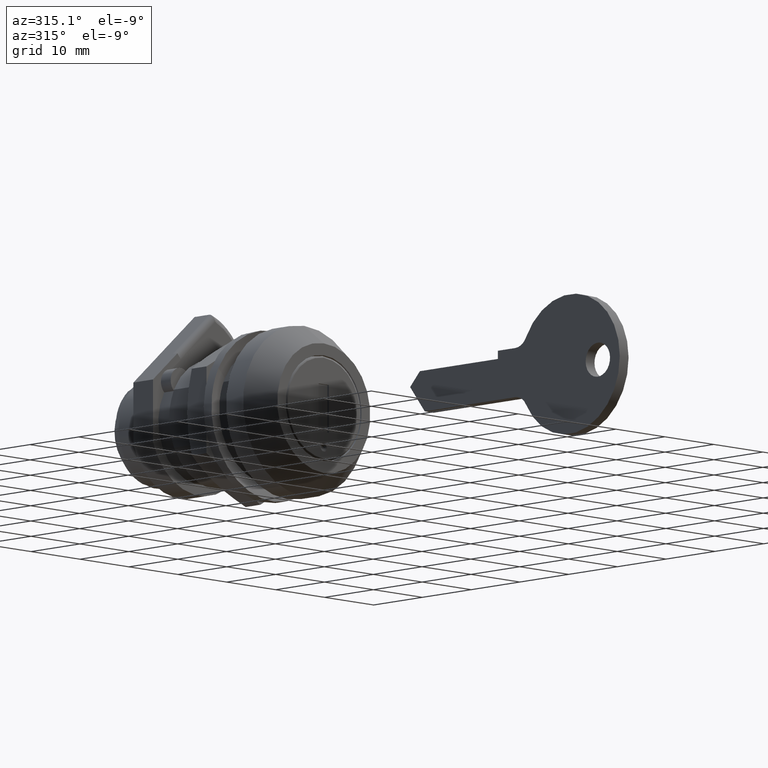
[diagram: clean part render]
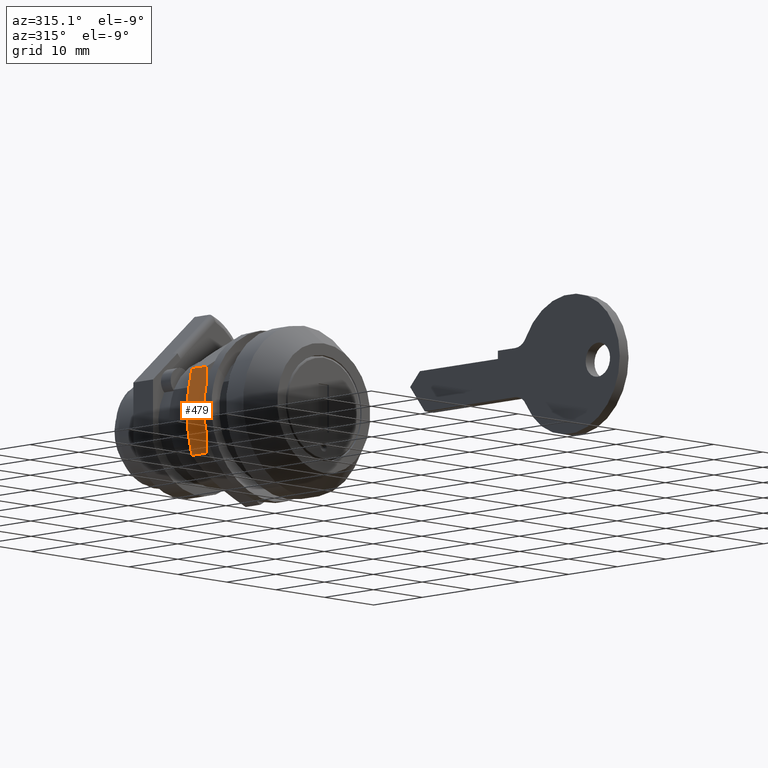
[diagram: same view with one face highlighted and labeled with its STEP entity id]
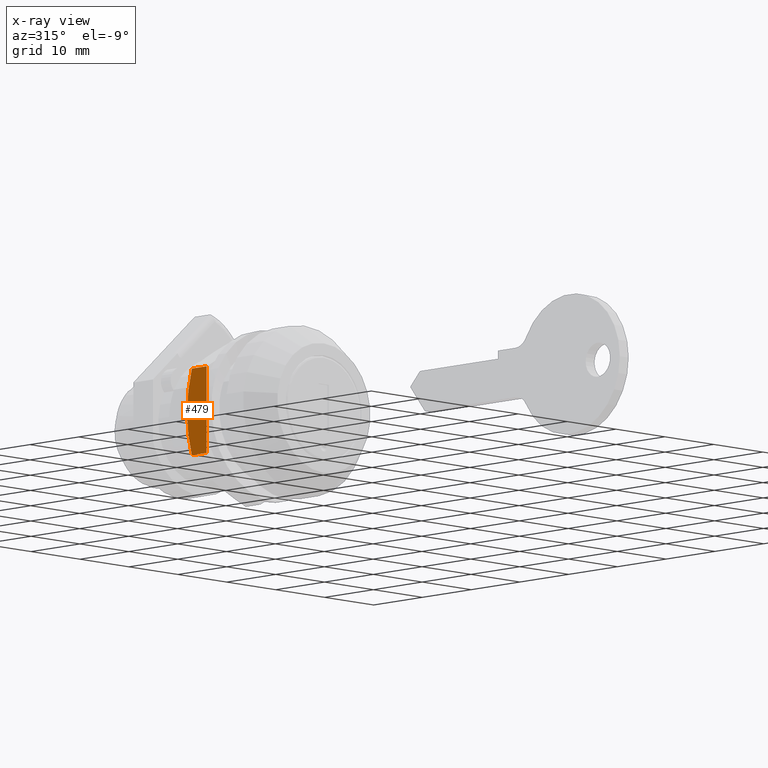
[diagram: x-ray of the same camera — body ghosted, the highlighted face saturated]
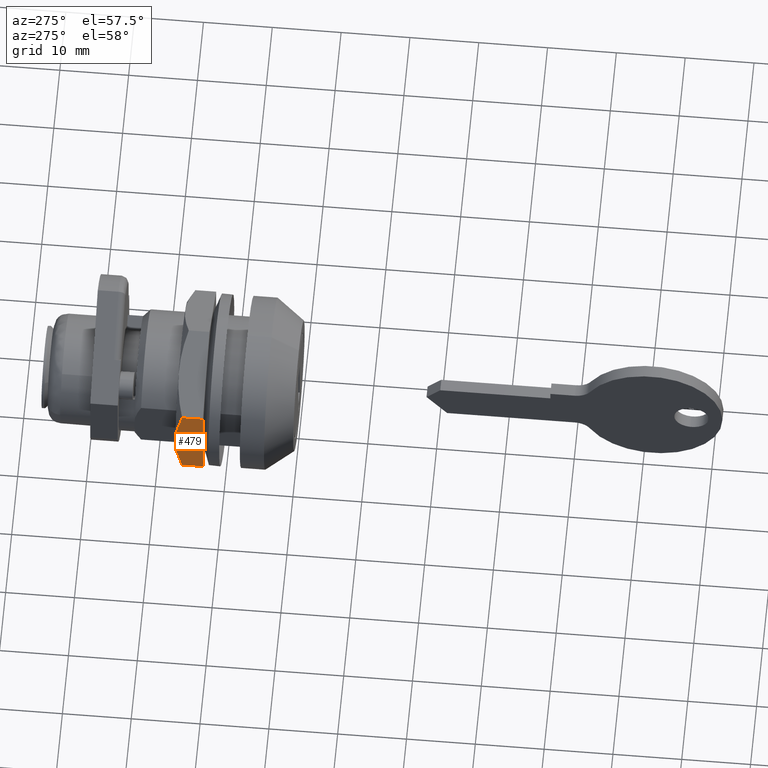
[diagram: same view with one face highlighted and labeled with its STEP entity id]
A machine part, auxiliary view. The second image highlights one B-rep face of the part: STEP entity #479.
The next image is the same camera in x-ray: the body ghosted, the highlighted face saturated — about 0% of this face is hidden behind the body in this view.
A second angle (auxiliary view) of the same face is appended — the face is thin or edge-on in the first view.
In plain terms, the highlighted planar face has unit normal (-1, 0, 0).
Its self-contained STEP definition (entity closure, byte-faithful):
#479=ADVANCED_FACE('',(#1616),#1615,.T.);
#1615=PLANE('',#2871);
#1616=FACE_OUTER_BOUND('',#2872,.T.);
#2868=CARTESIAN_POINT('',(1.10995013416E+01,1.10000000000E+01,-7.62108000000E+00));
#2869=DIRECTION('',(0.00000000000E+00,1.00000000000E+00,0.00000000000E+00));
#2870=DIRECTION('',(0.00000000000E+00,0.00000000000E+00,1.00000000000E+00));
#2871=AXIS2_PLACEMENT_3D('',#2868,#2869,#2870);
#2872=EDGE_LOOP('',(#3617,#3618,#3619,#3620,#3621));
#3617=ORIENTED_EDGE('',*,*,#4103,.F.);
#3618=ORIENTED_EDGE('',*,*,#4101,.T.);
#3619=ORIENTED_EDGE('',*,*,#4098,.T.);
#3620=ORIENTED_EDGE('',*,*,#4104,.T.);
#3621=ORIENTED_EDGE('',*,*,#4090,.F.);
#4090=EDGE_CURVE('',#5965,#5972,#5973,.T.);
#4098=EDGE_CURVE('',#5889,#6020,#6027,.T.);
#4101=EDGE_CURVE('',#6034,#5889,#6047,.T.);
#4103=EDGE_CURVE('',#6034,#5965,#6059,.T.);
#4104=EDGE_CURVE('',#6020,#5972,#6065,.T.);
#5889=VERTEX_POINT('',#7842);
#5965=VERTEX_POINT('',#7898);
#5972=VERTEX_POINT('',#7902);
#5973=LINE('',#7903,#7904);
#6020=VERTEX_POINT('',#7945);
#6027=(BOUNDED_CURVE() B_SPLINE_CURVE(3,(#7962,#7963,#7964,#7965,#7966,#7967,#7968,#7969,#7970,#7971),.UNSPECIFIED.,.F.,.F.) B_SPLINE_CURVE_WITH_KNOTS((4,2,2,2,4),(0.00000000000E+00,1.24845849173E-01,2.49845849173E-01,3.74845849173E-01,4.99845849173E-01),.UNSPECIFIED.) CURVE() GEOMETRIC_REPRESENTATION_ITEM() RATIONAL_B_SPLINE_CURVE((1.00000000000E+00,1.00000000000E+00,1.00000000000E+00,1.00000000000E+00,1.00000000000E+00,1.00000000000E+00,1.00000000000E+00,1.00000000000E+00,1.00000000000E+00,1.00000000000E+00)) REPRESENTATION_ITEM('') );
#6034=VERTEX_POINT('',#7973);
#6047=(BOUNDED_CURVE() B_SPLINE_CURVE(3,(#8006,#8007,#8008,#8009),.UNSPECIFIED.,.F.,.F.) B_SPLINE_CURVE_WITH_KNOTS((4,4),(4.99845849206E-01,1.00000000000E+00),.UNSPECIFIED.) CURVE() GEOMETRIC_REPRESENTATION_ITEM() RATIONAL_B_SPLINE_CURVE((1.00000000000E+00,1.00000000000E+00,1.00000000000E+00,1.00000000000E+00)) REPRESENTATION_ITEM('') );
#6059=LINE('',#8013,#8014);
#6065=LINE('',#8016,#8017);
#7842=CARTESIAN_POINT('',(1.55000000000E+01,1.10000000000E+01,1.42108500000E-14));
#7898=CARTESIAN_POINT('',(1.15000000000E+01,1.10000000000E+01,6.35090000000E+00));
#7902=CARTESIAN_POINT('',(1.15000000000E+01,1.10000000000E+01,-6.35090000000E+00));
#7903=CARTESIAN_POINT('',(1.15000000000E+01,1.10000000000E+01,6.35090000000E+00));
#7904=VECTOR('',#7905,1.27018000000E+01);
#7905=DIRECTION('',(0.00000000000E+00,0.00000000000E+00,-1.00000000000E+00));
#7945=CARTESIAN_POINT('',(1.45179830101E+01,1.10000000000E+01,-6.35090000000E+00));
#7962=CARTESIAN_POINT('',(1.55000000000E+01,1.10000000000E+01,1.42108500000E-14));
#7963=CARTESIAN_POINT('',(1.54999997244E+01,1.10000000000E+01,-5.36158762077E-01));
#7964=CARTESIAN_POINT('',(1.54772673635E+01,1.10000000000E+01,-1.07057298196E+00));
#7965=CARTESIAN_POINT('',(1.53885273331E+01,1.10000000000E+01,-2.13674232952E+00));
#7966=CARTESIAN_POINT('',(1.53224984721E+01,1.10000000000E+01,-2.66849583087E+00));
#7967=CARTESIAN_POINT('',(1.51516103732E+01,1.10000000000E+01,-3.72902285048E+00));
#7968=CARTESIAN_POINT('',(1.50467775183E+01,1.10000000000E+01,-4.25784581467E+00));
#7969=CARTESIAN_POINT('',(1.48039354872E+01,1.10000000000E+01,-5.31275528005E+00));
#7970=CARTESIAN_POINT('',(1.46670688498E+01,1.10000000000E+01,-5.83420353537E+00));
#7971=CARTESIAN_POINT('',(1.45179830101E+01,1.10000000000E+01,-6.35090000000E+00));
#7973=CARTESIAN_POINT('',(1.45179830101E+01,1.10000000000E+01,6.35090000000E+00));
#8006=CARTESIAN_POINT('',(1.45179830101E+01,1.10000000000E+01,6.35090000000E+00));
#8007=CARTESIAN_POINT('',(1.51155795494E+01,1.10000000000E+01,4.28934189126E+00));
#8008=CARTESIAN_POINT('',(1.55049865841E+01,1.10000000000E+01,2.15288854866E+00));
#8009=CARTESIAN_POINT('',(1.55000000000E+01,1.10000000000E+01,1.42108500000E-14));
#8013=CARTESIAN_POINT('',(1.45179830101E+01,1.10000000000E+01,6.35090000000E+00));
#8014=VECTOR('',#8015,3.01798301008E+00);
#8015=DIRECTION('',(-1.00000000000E+00,0.00000000000E+00,0.00000000000E+00));
#8016=CARTESIAN_POINT('',(1.45179830101E+01,1.10000000000E+01,-6.35090000000E+00));
#8017=VECTOR('',#8018,3.01798301008E+00);
#8018=DIRECTION('',(-1.00000000000E+00,0.00000000000E+00,0.00000000000E+00));